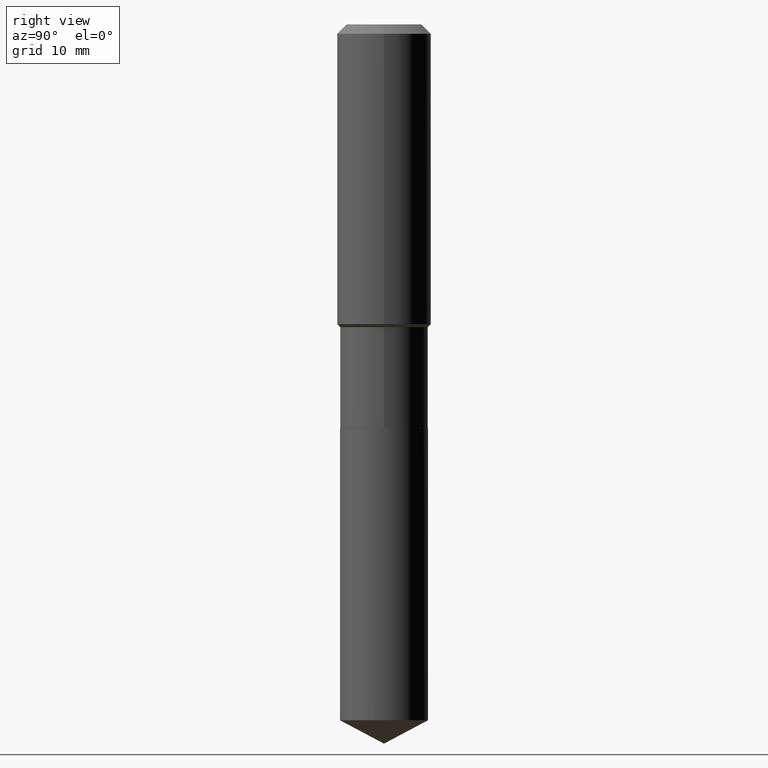
[diagram: clean part render]
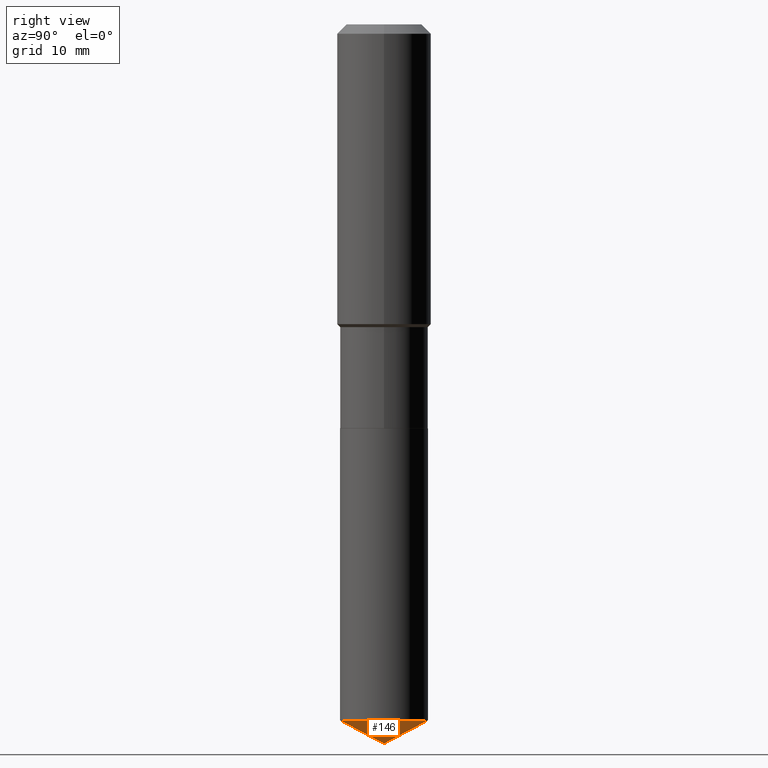
[diagram: same view with one face highlighted and labeled with its STEP entity id]
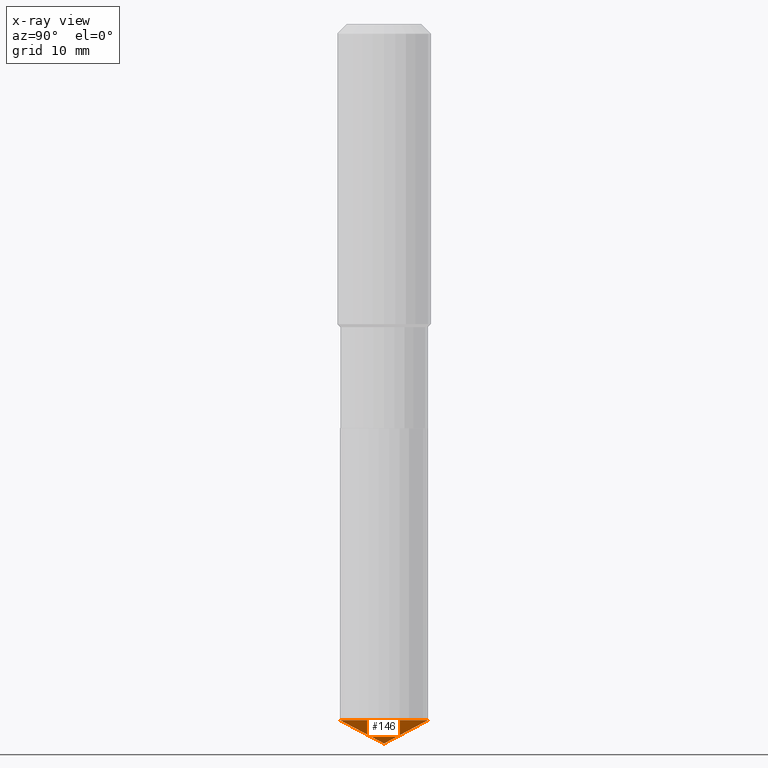
[diagram: x-ray of the same camera — body ghosted, the highlighted face saturated]
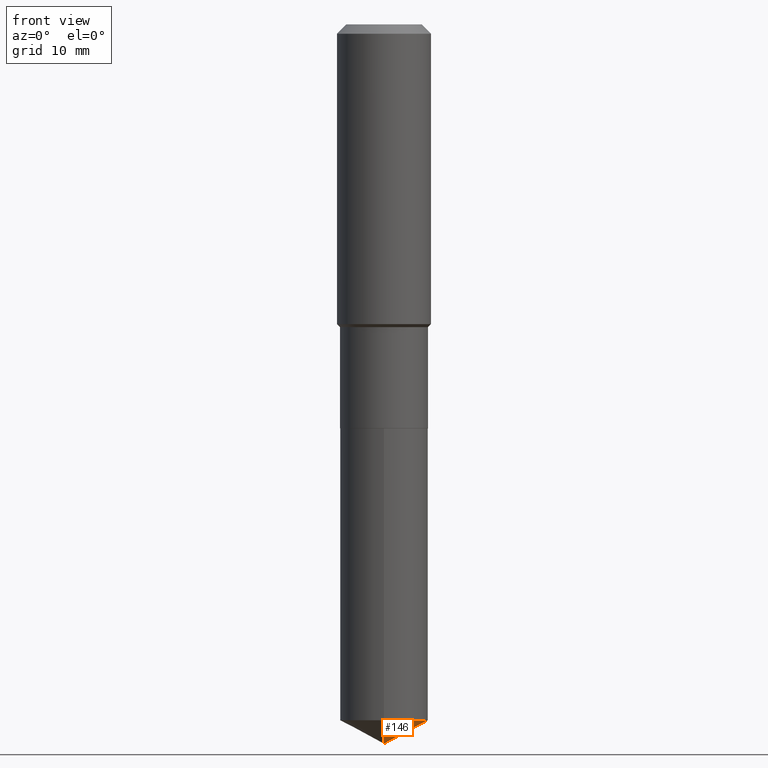
[diagram: same view with one face highlighted and labeled with its STEP entity id]
A machine part, right view. The second image highlights one B-rep face of the part: STEP entity #146.
The next image is the same camera in x-ray: the body ghosted, the highlighted face saturated — about 0% of this face is hidden behind the body in this view.
A second angle (front view) of the same face is appended — the face is thin or edge-on in the first view.
In plain terms, the highlighted conical surface has half-angle 62 deg.
Its self-contained STEP definition (entity closure, byte-faithful):
#12 = EDGE_CURVE ( 'NONE', #178, #260, #305, .T. ) ;
#15 = EDGE_CURVE ( 'NONE', #402, #178, #123, .T. ) ;
#22 = DIRECTION ( 'NONE',  ( 6.273719981627760554E-15, 0.8829475928589289868, 0.4694715627858866425 ) ) ;
#26 = VECTOR ( 'NONE', #458, 39.37007874015748143 ) ;
#57 = CARTESIAN_POINT ( 'NONE',  ( 1.030220065511256840E-28, -1.470762044607384763E-14, -4.212600000000000122 ) ) ;
#60 = CARTESIAN_POINT ( 'NONE',  ( -8.598021127879006181E-28, 1.227463913310365116E-13, 35.15747874015747954 ) ) ;
#94 = DIRECTION ( 'NONE',  ( -2.445567243636616117E-29, 3.491340370809915190E-15, 1.000000000000000000 ) ) ;
#123 = LINE ( 'NONE', #148, #26 ) ;
#127 = CONICAL_SURFACE ( 'NONE', #254, 74.04434902938334062, 1.082104136236485381 ) ;
#146 = ADVANCED_FACE ( 'NONE', ( #322 ), #127, .T. ) ;
#148 = CARTESIAN_POINT ( 'NONE',  ( 1.030173076452320861E-28, -1.470828750680709365E-14, -4.212600000000000122 ) ) ;
#152 = ORIENTED_EDGE ( 'NONE', *, *, #12, .F. ) ;
#153 = DIRECTION ( 'NONE',  ( -2.445567243636616117E-29, 3.491340370809915190E-15, 1.000000000000000000 ) ) ;
#156 = AXIS2_PLACEMENT_3D ( 'NONE', #266, #153, #273 ) ;
#178 = VERTEX_POINT ( 'NONE', #350 ) ;
#244 = LINE ( 'NONE', #57, #365 ) ;
#254 = AXIS2_PLACEMENT_3D ( 'NONE', #60, #94, #280 ) ;
#258 = EDGE_CURVE ( 'NONE', #402, #260, #244, .T. ) ;
#260 = VERTEX_POINT ( 'NONE', #282 ) ;
#266 = CARTESIAN_POINT ( 'NONE',  ( 9.966738292112629474E-29, -1.422937957225190381E-14, -4.075525308517671697 ) ) ;
#273 = DIRECTION ( 'NONE',  ( -6.982962677686265922E-15, -1.000000000000000000, 4.238709066973255853E-15 ) ) ;
#280 = DIRECTION ( 'NONE',  ( -6.982962677686265133E-15, -1.000000000000000000, 3.541896320645570335E-15 ) ) ;
#282 = CARTESIAN_POINT ( 'NONE',  ( 1.831779172789638277E-15, 0.2577999999999858183, -4.075525308517672585 ) ) ;
#292 = ORIENTED_EDGE ( 'NONE', *, *, #258, .T. ) ;
#305 = CIRCLE ( 'NONE', #156, 0.2577999999999999736 ) ;
#322 = FACE_OUTER_BOUND ( 'NONE', #408, .T. ) ;
#350 = CARTESIAN_POINT ( 'NONE',  ( -1.800207778307420165E-15, -0.2578000000000142955, -4.075525308517669920 ) ) ;
#365 = VECTOR ( 'NONE', #22, 39.37007874015748854 ) ;
#372 = CARTESIAN_POINT ( 'NONE',  ( 1.030219657054360942E-28, -1.470762044607384763E-14, -4.212600000000000122 ) ) ;
#402 = VERTEX_POINT ( 'NONE', #372 ) ;
#408 = EDGE_LOOP ( 'NONE', ( #490, #292, #152 ) ) ;
#458 = DIRECTION ( 'NONE',  ( -6.165590087286829718E-15, -0.8829475928589257672, 0.4694715627858929707 ) ) ;
#490 = ORIENTED_EDGE ( 'NONE', *, *, #15, .F. ) ;